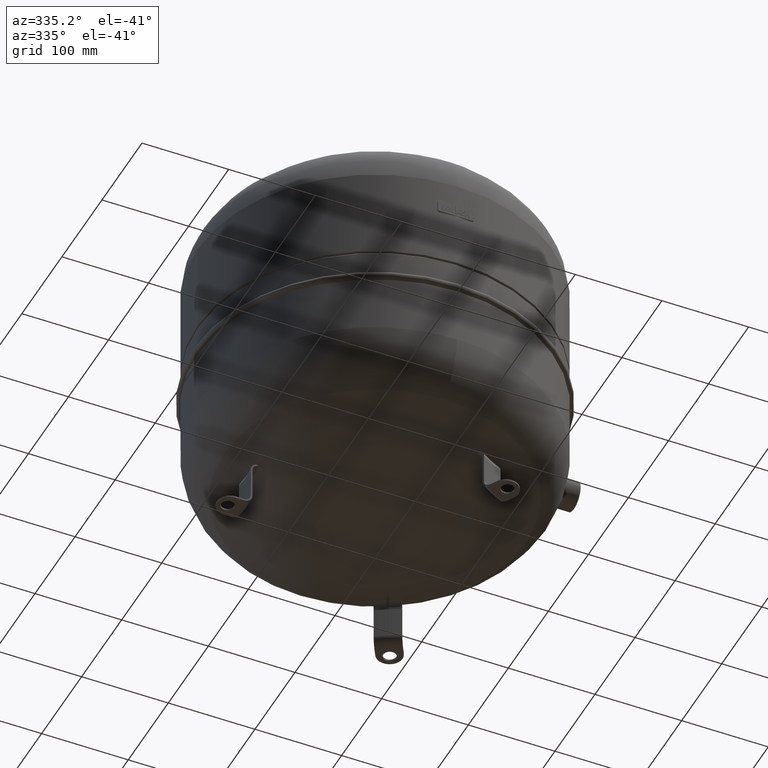
[diagram: clean part render]
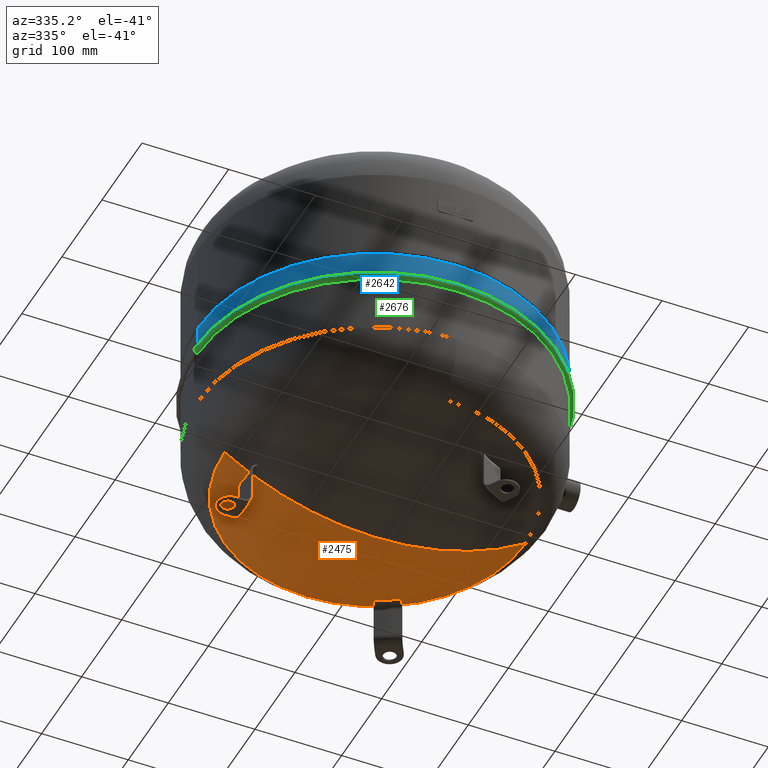
[diagram: same view with three faces highlighted in distinct colors, each labeled with its STEP entity id]
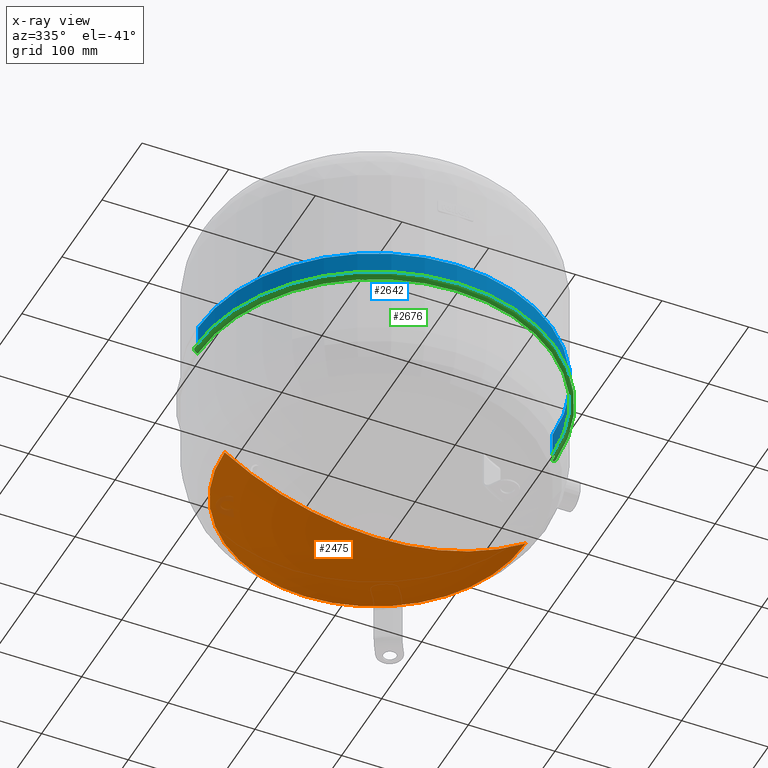
[diagram: x-ray of the same camera — body ghosted, the three highlighted faces saturated]
A machine part, auxiliary view with three faces highlighted in distinct colors.
The next image is the same camera in x-ray (body ghosted, the three faces saturated) — at least one of them is partly hidden behind the body in this view.
Their STEP definitions:

[orange] entity #2475 — the highlighted spherical surface has radius 302.5 mm.
#2396=CARTESIAN_POINT('',(-1.508531E-014,173.60869565217396,72.777835481055888));
#2397=VERTEX_POINT('',#2396);
#2405=CARTESIAN_POINT('',(-173.60869565217396,1.106263E-014,72.777835481055845));
#2406=VERTEX_POINT('',#2405);
#2407=CARTESIAN_POINT('',(2.132615E-015,1.106263E-014,72.77783548105586));
#2408=DIRECTION('',(0.0,0.0,1.0));
#2409=DIRECTION('',(-1.0,0.0,0.0));
#2410=AXIS2_PLACEMENT_3D('',#2407,#2408,#2409);
#2411=CIRCLE('',#2410,173.60869565217396);
#2412=EDGE_CURVE('',#2397,#2406,#2411,.T.);
#2429=CARTESIAN_POINT('',(173.60869565217396,-3.444319E-014,72.777835481055845));
#2430=VERTEX_POINT('',#2429);
#2431=CARTESIAN_POINT('',(-6.444643E-014,-3.444319E-014,18.0));
#2432=VERTEX_POINT('',#2431);
#2433=CARTESIAN_POINT('',(-4.592425E-014,-3.444319E-014,320.5));
#2434=DIRECTION('',(0.0,1.0,0.0));
#2435=DIRECTION('',(1.0,0.0,0.0));
#2436=AXIS2_PLACEMENT_3D('',#2433,#2434,#2435);
#2437=CIRCLE('',#2436,302.5);
#2438=EDGE_CURVE('',#2430,#2432,#2437,.T.);
#2448=CARTESIAN_POINT('',(-4.592425E-014,-3.444319E-014,320.5));
#2449=DIRECTION('',(0.0,-1.0,0.0));
#2450=DIRECTION('',(-1.0,0.0,0.0));
#2451=AXIS2_PLACEMENT_3D('',#2448,#2449,#2450);
#2452=CIRCLE('',#2451,302.5);
#2453=EDGE_CURVE('',#2406,#2432,#2452,.T.);
#2458=CARTESIAN_POINT('',(-4.592425E-014,-3.444319E-014,320.5));
#2459=DIRECTION('',(0.0,0.0,1.0));
#2460=DIRECTION('',(1.0,0.0,0.0));
#2461=AXIS2_PLACEMENT_3D('',#2458,#2459,#2460);
#2462=SPHERICAL_SURFACE('',#2461,302.5);
#2463=ORIENTED_EDGE('',*,*,#2438,.T.);
#2464=ORIENTED_EDGE('',*,*,#2453,.F.);
#2465=ORIENTED_EDGE('',*,*,#2412,.F.);
#2466=CARTESIAN_POINT('',(2.132615E-015,1.106263E-014,72.77783548105586));
#2467=DIRECTION('',(0.0,0.0,1.0));
#2468=DIRECTION('',(-1.0,0.0,0.0));
#2469=AXIS2_PLACEMENT_3D('',#2466,#2467,#2468);
#2470=CIRCLE('',#2469,173.60869565217396);
#2471=EDGE_CURVE('',#2430,#2397,#2470,.T.);
#2472=ORIENTED_EDGE('',*,*,#2471,.F.);
#2473=EDGE_LOOP('',(#2463,#2464,#2465,#2472));
#2474=FACE_OUTER_BOUND('',#2473,.T.);
#2475=ADVANCED_FACE('',(#2474),#2462,.T.);

[blue] entity #2642 — the highlighted cylindrical surface (partial cylindrical patch) has radius 204.5 mm, axis along (0, 0, 1).
#2576=CARTESIAN_POINT('',(204.50000000000003,0.0,234.50000000000006));
#2577=VERTEX_POINT('',#2576);
#2593=CARTESIAN_POINT('',(-204.5,-2.504320E-014,234.50000000000011));
#2594=VERTEX_POINT('',#2593);
#2601=CARTESIAN_POINT('',(-5.562655E-016,0.0,234.50000000000009));
#2602=DIRECTION('',(0.0,0.0,1.0));
#2603=DIRECTION('',(1.0,0.0,0.0));
#2604=AXIS2_PLACEMENT_3D('',#2601,#2602,#2603);
#2605=CIRCLE('',#2604,204.50000000000003);
#2606=EDGE_CURVE('',#2594,#2577,#2605,.T.);
#2611=CARTESIAN_POINT('',(-2.709808E-015,0.0,220.9500000000001));
#2612=DIRECTION('',(1.589330E-016,0.0,1.0));
#2613=DIRECTION('',(1.0,0.0,0.0));
#2614=AXIS2_PLACEMENT_3D('',#2611,#2612,#2613);
#2615=CYLINDRICAL_SURFACE('',#2614,204.5);
#2616=CARTESIAN_POINT('',(204.49999999999994,0.0,207.40000000000006));
#2617=VERTEX_POINT('',#2616);
#2618=CARTESIAN_POINT('',(204.5,0.0,234.50000000000006));
#2619=DIRECTION('',(0.0,0.0,-1.0));
#2620=VECTOR('',#2619,27.099999999999994);
#2621=LINE('',#2618,#2620);
#2622=EDGE_CURVE('',#2577,#2617,#2621,.T.);
#2623=ORIENTED_EDGE('',*,*,#2622,.F.);
#2624=ORIENTED_EDGE('',*,*,#2606,.F.);
#2625=CARTESIAN_POINT('',(-204.49999999999994,-2.504320E-014,207.40000000000012));
#2626=VERTEX_POINT('',#2625);
#2627=CARTESIAN_POINT('',(-204.5,-2.504320E-014,234.50000000000011));
#2628=DIRECTION('',(0.0,0.0,-1.0));
#2629=VECTOR('',#2628,27.099999999999994);
#2630=LINE('',#2627,#2629);
#2631=EDGE_CURVE('',#2594,#2626,#2630,.T.);
#2632=ORIENTED_EDGE('',*,*,#2631,.T.);
#2633=CARTESIAN_POINT('',(-4.863350E-015,0.0,207.40000000000009));
#2634=DIRECTION('',(0.0,0.0,1.0));
#2635=DIRECTION('',(1.0,0.0,0.0));
#2636=AXIS2_PLACEMENT_3D('',#2633,#2634,#2635);
#2637=CIRCLE('',#2636,204.49999999999994);
#2638=EDGE_CURVE('',#2626,#2617,#2637,.T.);
#2639=ORIENTED_EDGE('',*,*,#2638,.T.);
#2640=EDGE_LOOP('',(#2623,#2624,#2632,#2639));
#2641=FACE_OUTER_BOUND('',#2640,.T.);
#2642=ADVANCED_FACE('',(#2641),#2615,.T.);

[green] entity #2676 — the highlighted toroidal blend (fillet) surface has major radius 204.5 mm and minor (blend) radius 4.4 mm.
#2616=CARTESIAN_POINT('',(204.49999999999994,0.0,207.40000000000006));
#2617=VERTEX_POINT('',#2616);
#2625=CARTESIAN_POINT('',(-204.49999999999994,-2.504320E-014,207.40000000000012));
#2626=VERTEX_POINT('',#2625);
#2633=CARTESIAN_POINT('',(-4.863350E-015,0.0,207.40000000000009));
#2634=DIRECTION('',(0.0,0.0,1.0));
#2635=DIRECTION('',(1.0,0.0,0.0));
#2636=AXIS2_PLACEMENT_3D('',#2633,#2634,#2635);
#2637=CIRCLE('',#2636,204.49999999999994);
#2638=EDGE_CURVE('',#2626,#2617,#2637,.T.);
#2643=CARTESIAN_POINT('',(-3.552714E-014,0.0,203.00000000000009));
#2644=DIRECTION('',(1.589330E-016,0.0,1.0));
#2645=DIRECTION('',(1.0,0.0,0.0));
#2646=AXIS2_PLACEMENT_3D('',#2643,#2644,#2645);
#2647=TOROIDAL_SURFACE('',#2646,204.50000000000003,4.4);
#2648=CARTESIAN_POINT('',(204.50000000000003,0.0,198.60000000000005));
#2649=VERTEX_POINT('',#2648);
#2650=CARTESIAN_POINT('',(204.5,0.0,203.00000000000006));
#2651=DIRECTION('',(0.0,1.0,0.0));
#2652=DIRECTION('',(1.0,0.0,0.0));
#2653=AXIS2_PLACEMENT_3D('',#2650,#2651,#2652);
#2654=CIRCLE('',#2653,4.4);
#2655=EDGE_CURVE('',#2617,#2649,#2654,.T.);
#2656=ORIENTED_EDGE('',*,*,#2655,.F.);
#2657=ORIENTED_EDGE('',*,*,#2638,.F.);
#2658=CARTESIAN_POINT('',(-204.50000000000003,-2.504320E-014,198.60000000000011));
#2659=VERTEX_POINT('',#2658);
#2660=CARTESIAN_POINT('',(-204.50000000000006,-2.504320E-014,203.00000000000011));
#2661=DIRECTION('',(0.0,-1.0,0.0));
#2662=DIRECTION('',(-1.0,0.0,0.0));
#2663=AXIS2_PLACEMENT_3D('',#2660,#2661,#2662);
#2664=CIRCLE('',#2663,4.4);
#2665=EDGE_CURVE('',#2626,#2659,#2664,.T.);
#2666=ORIENTED_EDGE('',*,*,#2665,.T.);
#2667=CARTESIAN_POINT('',(-6.261960E-015,0.0,198.60000000000008));
#2668=DIRECTION('',(0.0,0.0,1.0));
#2669=DIRECTION('',(1.0,0.0,0.0));
#2670=AXIS2_PLACEMENT_3D('',#2667,#2668,#2669);
#2671=CIRCLE('',#2670,204.50000000000003);
#2672=EDGE_CURVE('',#2659,#2649,#2671,.T.);
#2673=ORIENTED_EDGE('',*,*,#2672,.T.);
#2674=EDGE_LOOP('',(#2656,#2657,#2666,#2673));
#2675=FACE_OUTER_BOUND('',#2674,.T.);
#2676=ADVANCED_FACE('',(#2675),#2647,.T.);